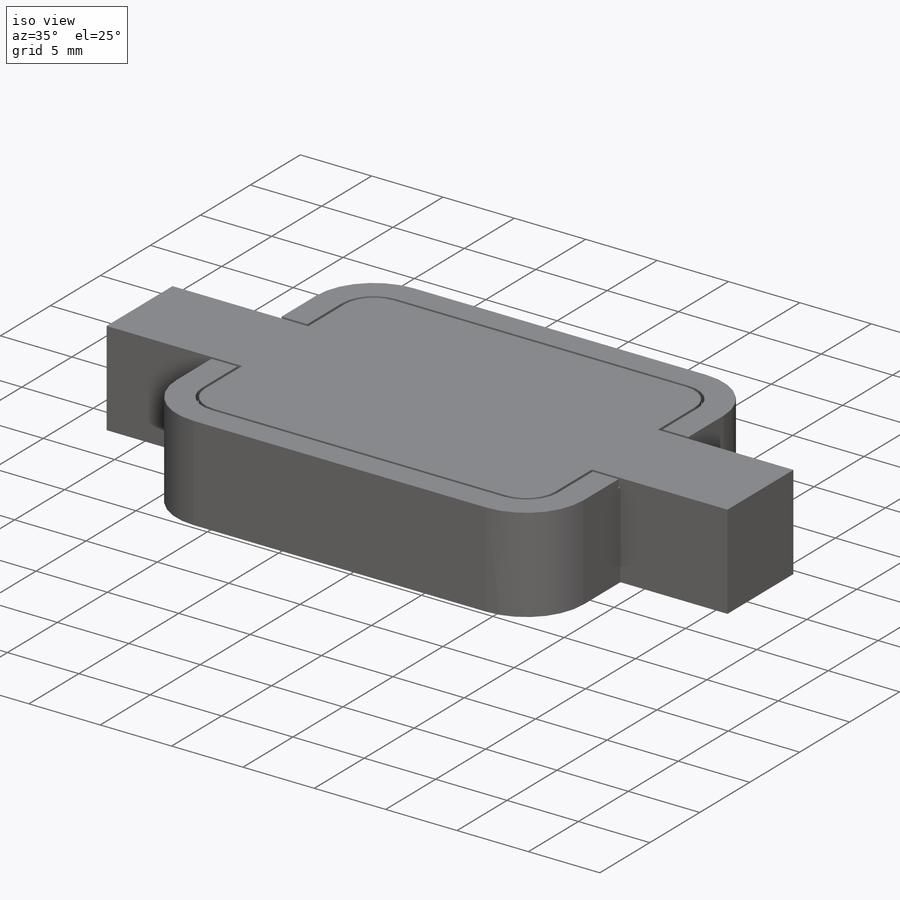
[diagram: iso view]
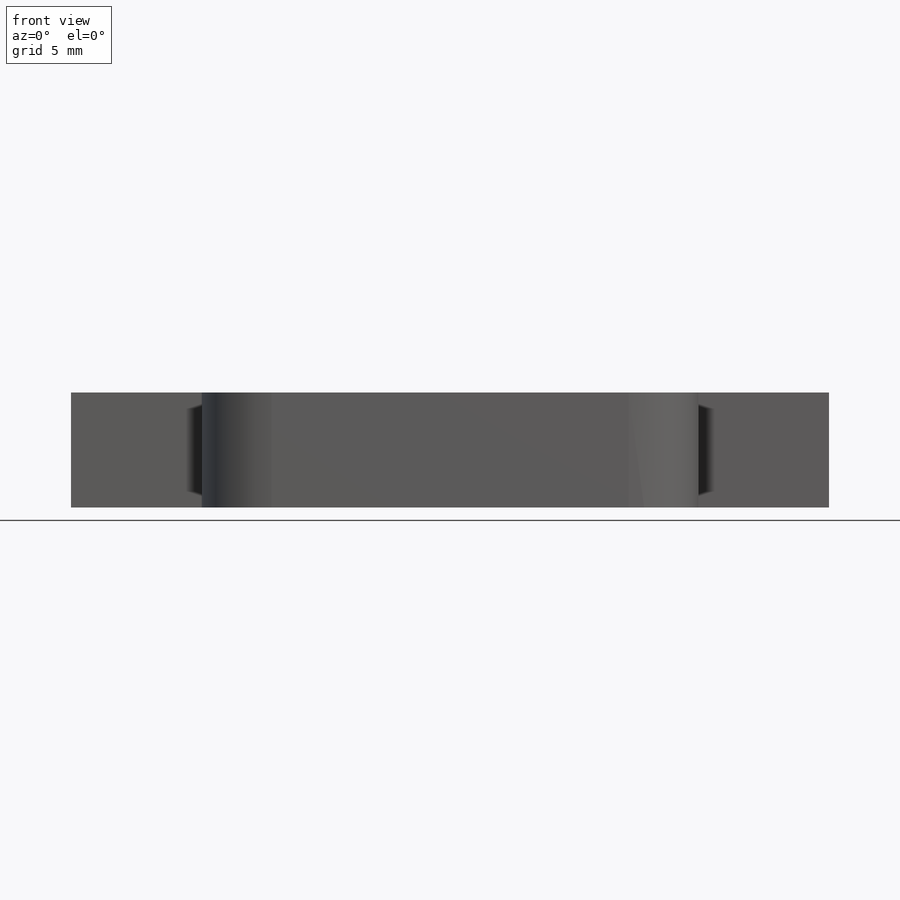
[diagram: front view]
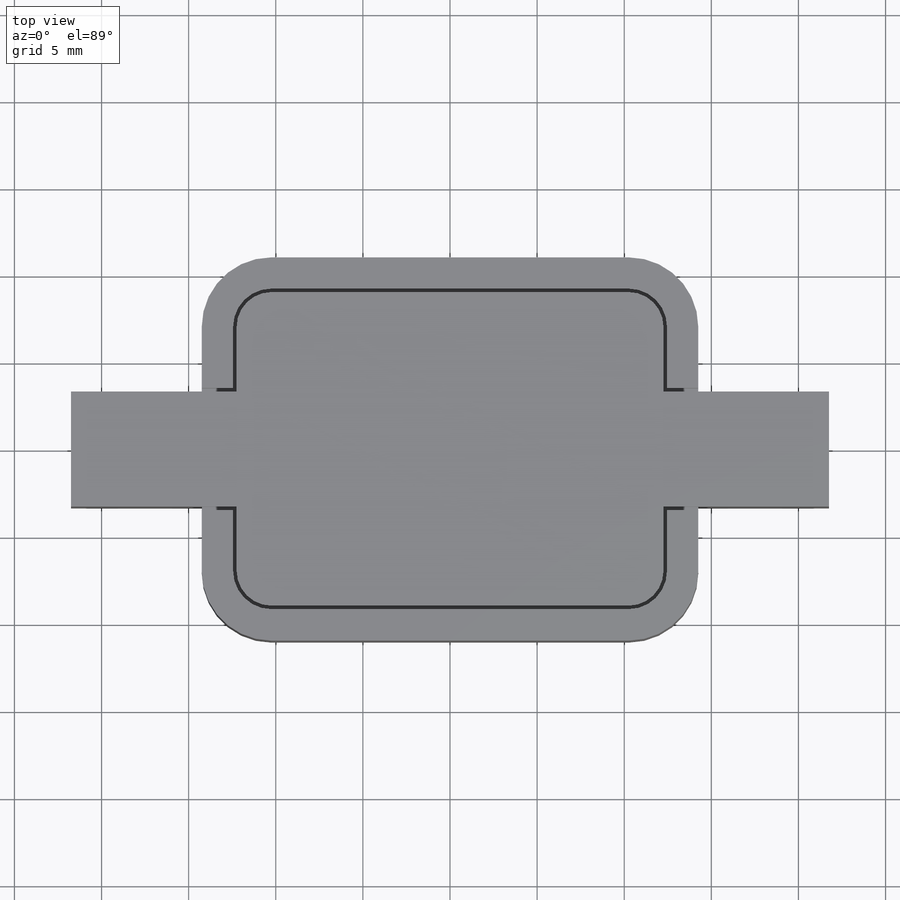
[diagram: top view]
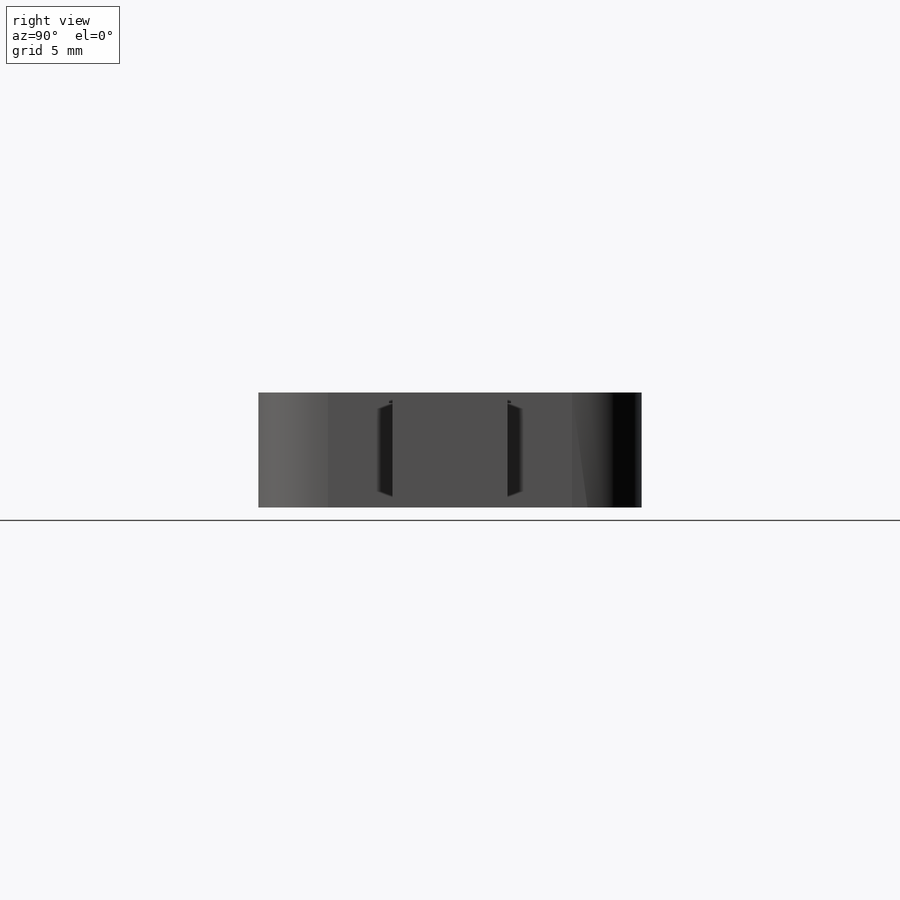
[diagram: right view]
SOLIDWORKS PART (.sldprt)
format: sldprt  version: not decoded by parser v0  size: 389,632 bytes
history: native  units: mm
features: sketch x5, cut_extrude x3, extrude x2, material x1, fillet x1 (+12 scaffold rows collapsed)
feature tree (24):
  scaffold x12  (default folders/planes/origin — collapsed)
  material  "Material <not specified>"
  sketch  "Sketch1"  dims[c1.D7=4.0mm c1.D3=4.0mm c1.D1=20.0mm c1.D2=40.0mm c2.D3=7.5mm c2.D4=7.5mm c2.D5=6.6mm c2.D6=6.6mm c2.D8=22.0mm c2.D9=6.6mm c2.D1=43.5mm c2.D2=7.5mm c3.D3=11.0mm]
  extrude  "Boss-Extrude1"  Depth=6.6mm
  sketch  "Sketch2"  dims[D2=0.2mm D3=0.2mm D4=0.2mm D5=0.2mm D6=7.0mm D1=1.8mm]
  cut_extrude  "Cut-Extrude1"  Depth=0.6mm
  sketch  "Sketch3"  dims[D3=2.0mm D1=0.0mm D2=2.0mm]
  cut_extrude  "Cut-Extrude2"  Depth=1.5mm
  sketch  "Sketch4"  dims[D1=3.3mm]
  cut_extrude  "MagnetHole"  Depth=0.6mm
  sketch  "Sketch5"  dims[D1=0.0mm D2=0.2mm D3=0.2mm]
  extrude  "PCB"  Depth=0.6mm
  fillet  "Fillet1"  Radius=2mm
decode coverage: 11 of 11 modeling features carry decoded parameters
note: suppression state not decoded; provenance and decode notes live in map.json
